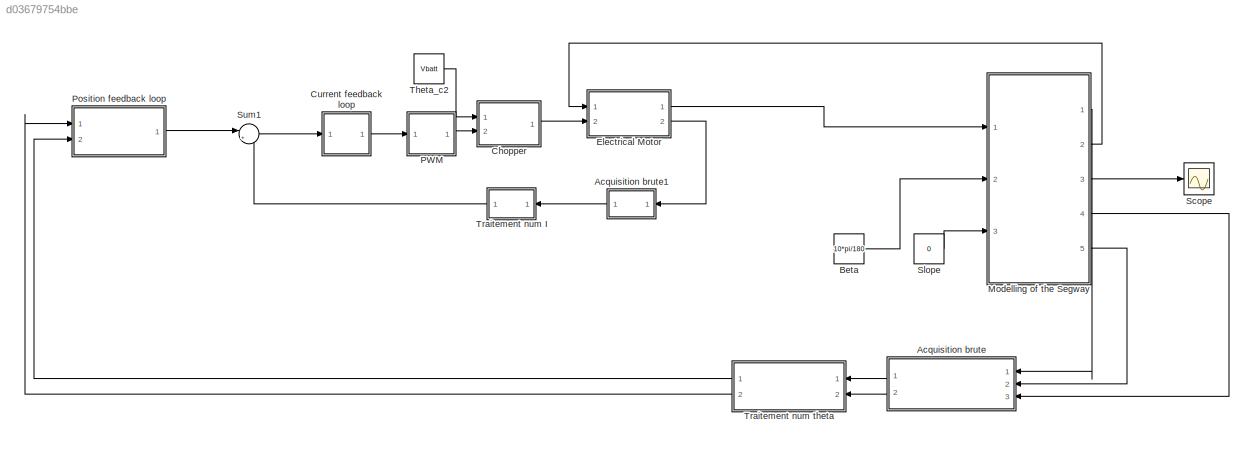
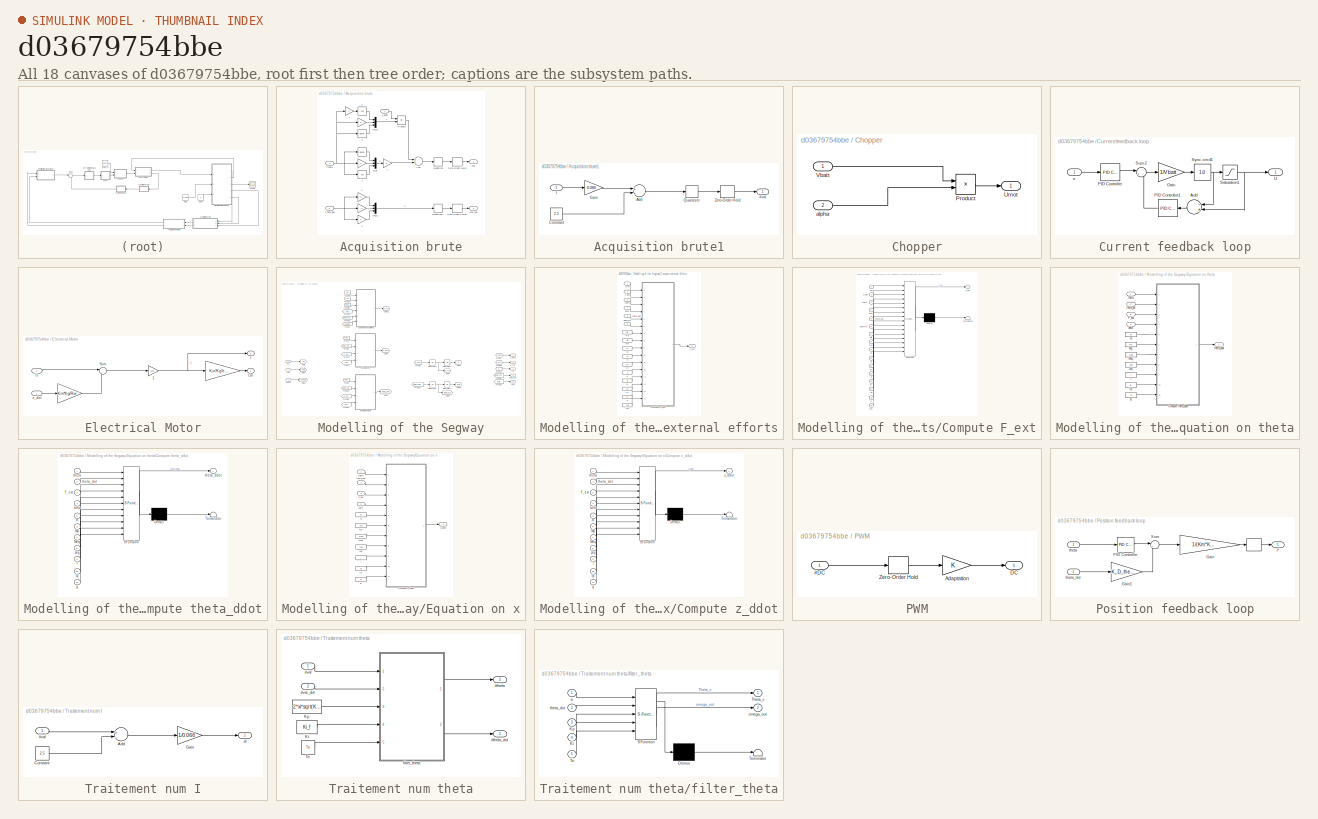
[diagram: thumbnail index - all 18 canvases of the model, root first then tree order]
MODEL slx_d03679754bbe
KIND model
CONFIG AbsTol = auto
CONFIG EnableMultiTasking = on
CONFIG FixedStep = 0.005
CONFIG MaxStep = auto
CONFIG MinStep = auto
CONFIG RelTol = 1e-3
CONFIG SampleTimeConstraint = Unconstrained
CONFIG Solver = ode4
CONFIG SolverName = ode4
CONFIG StartTime = 0.0
CONFIG StopTime = 20
BLOCK [SubSystem] Acquisition brute
  Ports = [3, 2]
  RequestExecContextInheritance = off
  Variant = off
BLOCK [Trigonometry] Acquisition brute/   
  Ports = [1, 1]
BLOCK [Gain] Acquisition brute/    
  Gain = 0
  OutDataTypeStr = Inherit: Inherit via internal rule
  ParamDataTypeStr = Inherit: Inherit via internal rule
  SaturateOnIntegerOverflow = off
BLOCK [Gain] Acquisition brute/    1
  Gain = g
  OutDataTypeStr = Inherit: Inherit via internal rule
  ParamDataTypeStr = Inherit: Inherit via internal rule
  SaturateOnIntegerOverflow = off
BLOCK [Gain] Acquisition brute/    2
  Gain = -1
  OutDataTypeStr = Inherit: Inherit via internal rule
  ParamDataTypeStr = Inherit: Inherit via internal rule
  SaturateOnIntegerOverflow = off
BLOCK [Gain] Acquisition brute/    3
  Gain = 0
  OutDataTypeStr = Inherit: Inherit via internal rule
  ParamDataTypeStr = Inherit: Inherit via internal rule
  SaturateOnIntegerOverflow = off
BLOCK [Gain] Acquisition brute/    4
  Gain = 0
  OutDataTypeStr = Inherit: Inherit via internal rule
  ParamDataTypeStr = Inherit: Inherit via internal rule
  SaturateOnIntegerOverflow = off
BLOCK [Gain] Acquisition brute/    5
  Gain = 0
  OutDataTypeStr = Inherit: Inherit via internal rule
  ParamDataTypeStr = Inherit: Inherit via internal rule
  SaturateOnIntegerOverflow = off
BLOCK [Gain] Acquisition brute/    7
  Gain = -1
  OutDataTypeStr = Inherit: Inherit via internal rule
  ParamDataTypeStr = Inherit: Inherit via internal rule
  SaturateOnIntegerOverflow = off
BLOCK [Trigonometry] Acquisition brute/   1
  Operator = cos
  Ports = [1, 1]
BLOCK [Trigonometry] Acquisition brute/   2
  Operator = cos
  Ports = [1, 1]
BLOCK [Trigonometry] Acquisition brute/   3
  Ports = [1, 1]
BLOCK [Outport] Acquisition brute/#val
  IconDisplay = Port number
BLOCK [Outport] Acquisition brute/#val_dot
  IconDisplay = Port number
  Port = 2
BLOCK [Sum] Acquisition brute/Add
  InputSameDT = off
  OutDataTypeStr = Inherit: Inherit via internal rule
  Ports = [2, 1]
  SaturateOnIntegerOverflow = off
BLOCK [Mux] Acquisition brute/Mux
  DisplayOption = bar
  Inputs = 3
  Ports = [3, 1]
BLOCK [Mux] Acquisition brute/Mux1
  DisplayOption = bar
  Inputs = 3
  Ports = [3, 1]
BLOCK [Mux] Acquisition brute/Mux2
  DisplayOption = bar
  Inputs = 3
  Ports = [3, 1]
BLOCK [Product] Acquisition brute/Product
  InputSameDT = off
  OutDataTypeStr = Inherit: Inherit via internal rule
  Ports = [2, 1]
  RndMeth = Floor
  SaturateOnIntegerOverflow = off
BLOCK [Quantizer] Acquisition brute/Quantizer
  QuantizationInterval = 0.0039
BLOCK [Quantizer] Acquisition brute/Quantizer1
  QuantizationInterval = 0.00122
BLOCK [Inport] Acquisition brute/Theta
  IconDisplay = Port number
  Port = 2
BLOCK [Inport] Acquisition brute/Theta_dot
  IconDisplay = Port number
  Port = 3
BLOCK [ZeroOrderHold] Acquisition brute/Zero-Order Hold
  SampleTime = Te
BLOCK [ZeroOrderHold] Acquisition brute/Zero-Order Hold1
  SampleTime = Te
BLOCK [Inport] Acquisition brute/z_ddot
  IconDisplay = Port number
BLOCK [SubSystem] Acquisition brute1
  Ports = [1, 1]
  RequestExecContextInheritance = off
  Variant = off
BLOCK [Outport] Acquisition brute1/#val
  IconDisplay = Port number
BLOCK [Sum] Acquisition brute1/Add
  InputSameDT = off
  OutDataTypeStr = Inherit: Inherit via internal rule
  Ports = [2, 1]
  SaturateOnIntegerOverflow = off
BLOCK [Constant] Acquisition brute1/Constant
  Value = 2.5
BLOCK [Gain] Acquisition brute1/Gain
  Gain = 0.066
  OutDataTypeStr = Inherit: Inherit via internal rule
  ParamDataTypeStr = Inherit: Inherit via internal rule
  SaturateOnIntegerOverflow = off
BLOCK [Inport] Acquisition brute1/I
  IconDisplay = Port number
BLOCK [Quantizer] Acquisition brute1/Quantizer
  QuantizationInterval = 5/(2^10-1)
BLOCK [ZeroOrderHold] Acquisition brute1/Zero-Order Hold
  SampleTime = Ti
BLOCK [Constant] Beta
  Value = 10*pi/180
BLOCK [SubSystem] Chopper
  Ports = [2, 1]
  RequestExecContextInheritance = off
  Variant = off
BLOCK [Product] Chopper/Product
  InputSameDT = off
  OutDataTypeStr = Inherit: Inherit via internal rule
  Ports = [2, 1]
  SaturateOnIntegerOverflow = off
BLOCK [Outport] Chopper/Umot
  IconDisplay = Port number
BLOCK [Inport] Chopper/Vbatt
  IconDisplay = Port number
BLOCK [Inport] Chopper/alpha
  IconDisplay = Port number
  Port = 2
BLOCK [SubSystem] Current feedback loop
  Ports = [1, 1]
  RequestExecContextInheritance = off
  Variant = off
BLOCK [Sum] Current feedback loop/Add
  InputSameDT = off
  Inputs = -+
  OutDataTypeStr = Inherit: Inherit via internal rule
  Ports = [2, 1]
  SaturateOnIntegerOverflow = off
BLOCK [Gain] Current feedback loop/Gain
  Gain = 1/Vbatt
  OutDataTypeStr = Inherit: Inherit via internal rule
  ParamDataTypeStr = Inherit: Inherit via internal rule
  SaturateOnIntegerOverflow = off
BLOCK [Reference] Current feedback loop/PID Controller  REF=simulink/Continuous/PID Controller
  Ports = [1, 1]
  SourceBlock = simulink/Continuous/PID Controller
  SourceType = PID 1dof
BLOCK [Reference] Current feedback loop/PID Controller1  REF=simulink/Continuous/PID Controller
  Ports = [1, 1]
  SourceBlock = simulink/Continuous/PID Controller
  SourceType = PID 1dof
BLOCK [Saturate] Current feedback loop/Saturation1
  InputPortMap = u0
  LowerLimit = -1
  Ports = [1, 1]
  UpperLimit = 1
BLOCK [Sum] Current feedback loop/Sum2
  IconShape = round
  InputSameDT = off
  Inputs = |++
  OutDataTypeStr = Inherit: Inherit via internal rule
  Ports = [2, 1]
  SaturateOnIntegerOverflow = off
BLOCK [UnitDelay] Current feedback loop/Sync. cmd1
  InputProcessing = Elements as channels (sample based)
  SampleTime = -1
BLOCK [Outport] Current feedback loop/U
  IconDisplay = Port number
BLOCK [Inport] Current feedback loop/e
  IconDisplay = Port number
BLOCK [SubSystem] Electrical Motor
  Ports = [2, 2]
  RequestExecContextInheritance = off
  Variant = off
BLOCK [Gain] Electrical Motor/  
  Gain = Km*Kg*eta_pwc
  OutDataTypeStr = Inherit: Inherit via internal rule
  ParamDataTypeStr = Inherit: Inherit via internal rule
  SaturateOnIntegerOverflow = off
BLOCK [Gain] Electrical Motor/   
  Gain = Km*Kg/Rw
  OutDataTypeStr = Inherit: Inherit via internal rule
  ParamDataTypeStr = Inherit: Inherit via internal rule
  SaturateOnIntegerOverflow = off
BLOCK [Gain] Electrical Motor/ 1
  Gain = 1/R
  OutDataTypeStr = Inherit: Inherit via internal rule
  ParamDataTypeStr = Inherit: Inherit via internal rule
  SaturateOnIntegerOverflow = off
BLOCK [Outport] Electrical Motor/Cm
  IconDisplay = Port number
BLOCK [Outport] Electrical Motor/I
  IconDisplay = Port number
  Port = 2
BLOCK [Sum] Electrical Motor/Sum
  IconShape = round
  InputSameDT = off
  Inputs = |+-
  OutDataTypeStr = Inherit: Inherit via internal rule
  Ports = [2, 1]
  SaturateOnIntegerOverflow = off
BLOCK [Inport] Electrical Motor/U
  IconDisplay = Port number
  Port = 2
BLOCK [Inport] Electrical Motor/z_dot
  IconDisplay = Port number
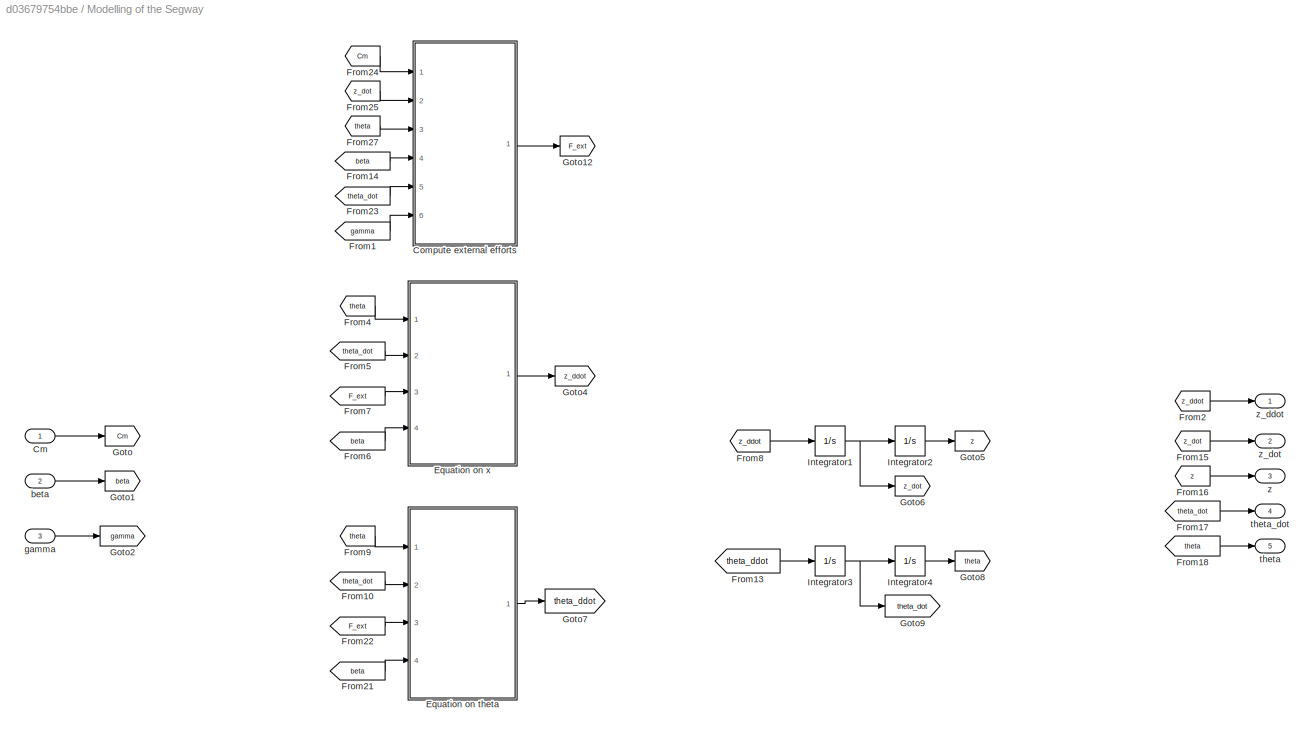
BLOCK [SubSystem] Modelling of the Segway
  Ports = [3, 5]
  RequestExecContextInheritance = off
  Variant = off
BLOCK [Inport] Modelling of the Segway/Cm
  IconDisplay = Port number
BLOCK [SubSystem] Modelling of the Segway/Compute external efforts
  Ports = [6, 1]
  RequestExecContextInheritance = off
  Variant = off
BLOCK [Inport] Modelling of the Segway/Compute external efforts/Cm
  IconDisplay = Port number
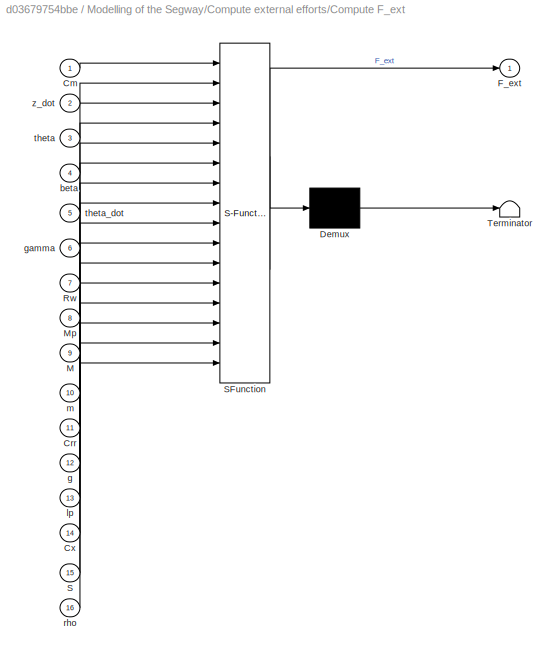
BLOCK [SubSystem] Modelling of the Segway/Compute external efforts/Compute F_ext
  ErrorFcn = Stateflow.Translate.translate
  PermitHierarchicalResolution = ExplicitOnly
  Ports = [16, 1]
  RequestExecContextInheritance = off
  SFBlockType = MATLAB Function
  TreatAsAtomicUnit = on
  Variant = off
BLOCK [Demux] Modelling of the Segway/Compute external efforts/Compute F_ext/ Demux 
  Outputs = 1
  Ports = [1, 1]
BLOCK [S-Function] Modelling of the Segway/Compute external efforts/Compute F_ext/ SFunction 
  EnableBusSupport = on
  FunctionName = sf_sfun
  PortCounts = [16 2]
  Ports = [16, 2]
  SFcnIsStateOwnerBlock = off
  SFunctionDeploymentMode = off
  Tag = Stateflow S-Function Segway_final_1 5
BLOCK [Terminator] Modelling of the Segway/Compute external efforts/Compute F_ext/ Terminator 
BLOCK [Inport] Modelling of the Segway/Compute external efforts/Compute F_ext/Cm
  IconDisplay = Port number
BLOCK [Inport] Modelling of the Segway/Compute external efforts/Compute F_ext/Crr
  IconDisplay = Port number
  Port = 11
BLOCK [Inport] Modelling of the Segway/Compute external efforts/Compute F_ext/Cx
  IconDisplay = Port number
  Port = 14
BLOCK [Outport] Modelling of the Segway/Compute external efforts/Compute F_ext/F_ext
  IconDisplay = Port number
BLOCK [Inport] Modelling of the Segway/Compute external efforts/Compute F_ext/M
  IconDisplay = Port number
  Port = 9
BLOCK [Inport] Modelling of the Segway/Compute external efforts/Compute F_ext/Mp
  IconDisplay = Port number
  Port = 8
BLOCK [Inport] Modelling of the Segway/Compute external efforts/Compute F_ext/Rw
  IconDisplay = Port number
  Port = 7
BLOCK [Inport] Modelling of the Segway/Compute external efforts/Compute F_ext/S
  IconDisplay = Port number
  Port = 15
BLOCK [Inport] Modelling of the Segway/Compute external efforts/Compute F_ext/beta
  IconDisplay = Port number
  Port = 4
BLOCK [Inport] Modelling of the Segway/Compute external efforts/Compute F_ext/g
  IconDisplay = Port number
  Port = 12
BLOCK [Inport] Modelling of the Segway/Compute external efforts/Compute F_ext/gamma
  IconDisplay = Port number
  Port = 6
BLOCK [Inport] Modelling of the Segway/Compute external efforts/Compute F_ext/lp
  IconDisplay = Port number
  Port = 13
BLOCK [Inport] Modelling of the Segway/Compute external efforts/Compute F_ext/m
  IconDisplay = Port number
  Port = 10
BLOCK [Inport] Modelling of the Segway/Compute external efforts/Compute F_ext/rho
  IconDisplay = Port number
  Port = 16
BLOCK [Inport] Modelling of the Segway/Compute external efforts/Compute F_ext/theta
  IconDisplay = Port number
  Port = 3
BLOCK [Inport] Modelling of the Segway/Compute external efforts/Compute F_ext/theta_dot
  IconDisplay = Port number
  Port = 5
BLOCK [Inport] Modelling of the Segway/Compute external efforts/Compute F_ext/z_dot
  IconDisplay = Port number
  Port = 2
BLOCK [Constant] Modelling of the Segway/Compute external efforts/Crr
  Value = Crr
BLOCK [Constant] Modelling of the Segway/Compute external efforts/Cx
  Value = Cx
BLOCK [Outport] Modelling of the Segway/Compute external efforts/F_ext
  IconDisplay = Port number
BLOCK [Constant] Modelling of the Segway/Compute external efforts/M
  Value = M
BLOCK [Constant] Modelling of the Segway/Compute external efforts/Mp
  Value = Mp
BLOCK [Constant] Modelling of the Segway/Compute external efforts/Rw
  Value = Rw
BLOCK [Constant] Modelling of the Segway/Compute external efforts/S
  Value = S
BLOCK [Inport] Modelling of the Segway/Compute external efforts/beta
  IconDisplay = Port number
  Port = 4
BLOCK [Constant] Modelling of the Segway/Compute external efforts/g
  Value = g
BLOCK [Inport] Modelling of the Segway/Compute external efforts/gamma
  IconDisplay = Port number
  Port = 6
BLOCK [Constant] Modelling of the Segway/Compute external efforts/lp
  Value = lp
BLOCK [Constant] Modelling of the Segway/Compute external efforts/m
  Value = m
BLOCK [Constant] Modelling of the Segway/Compute external efforts/rho
  Value = rho
BLOCK [Inport] Modelling of the Segway/Compute external efforts/theta
  IconDisplay = Port number
  Port = 3
BLOCK [Inport] Modelling of the Segway/Compute external efforts/theta_dot
  IconDisplay = Port number
  Port = 5
BLOCK [Inport] Modelling of the Segway/Compute external efforts/z_dot
  IconDisplay = Port number
  Port = 2
BLOCK [SubSystem] Modelling of the Segway/Equation on theta
  Ports = [4, 1]
  RequestExecContextInheritance = off
  Variant = off
BLOCK [SubSystem] Modelling of the Segway/Equation on theta/Compute theta_ddot
  ErrorFcn = Stateflow.Translate.translate
  PermitHierarchicalResolution = ExplicitOnly
  Ports = [11, 1]
  RequestExecContextInheritance = off
  SFBlockType = MATLAB Function
  TreatAsAtomicUnit = on
  Variant = off
BLOCK [Demux] Modelling of the Segway/Equation on theta/Compute theta_ddot/ Demux 
  Outputs = 1
  Ports = [1, 1]
BLOCK [S-Function] Modelling of the Segway/Equation on theta/Compute theta_ddot/ SFunction 
  EnableBusSupport = on
  FunctionName = sf_sfun
  PortCounts = [11 2]
  Ports = [11, 2]
  SFcnIsStateOwnerBlock = off
  SFunctionDeploymentMode = off
  Tag = Stateflow S-Function Segway_final_1 3
BLOCK [Terminator] Modelling of the Segway/Equation on theta/Compute theta_ddot/ Terminator 
BLOCK [Inport] Modelling of the Segway/Equation on theta/Compute theta_ddot/F_ext
  IconDisplay = Port number
  Port = 3
BLOCK [Inport] Modelling of the Segway/Equation on theta/Compute theta_ddot/Jeq
  IconDisplay = Port number
  Port = 8
BLOCK [Inport] Modelling of the Segway/Equation on theta/Compute theta_ddot/Meq
  IconDisplay = Port number
  Port = 7
BLOCK [Inport] Modelling of the Segway/Equation on theta/Compute theta_ddot/Mp
  IconDisplay = Port number
  Port = 6
BLOCK [Inport] Modelling of the Segway/Equation on theta/Compute theta_ddot/beta
  IconDisplay = Port number
  Port = 4
BLOCK [Inport] Modelling of the Segway/Equation on theta/Compute theta_ddot/g
  IconDisplay = Port number
  Port = 11
BLOCK [Inport] Modelling of the Segway/Equation on theta/Compute theta_ddot/l
  IconDisplay = Port number
  Port = 9
BLOCK [Inport] Modelling of the Segway/Equation on theta/Compute theta_ddot/lp
  IconDisplay = Port number
  Port = 10
BLOCK [Inport] Modelling of the Segway/Equation on theta/Compute theta_ddot/m
  IconDisplay = Port number
  Port = 5
BLOCK [Inport] Modelling of the Segway/Equation on theta/Compute theta_ddot/theta
  IconDisplay = Port number
BLOCK [Outport] Modelling of the Segway/Equation on theta/Compute theta_ddot/theta_ddot
  IconDisplay = Port number
BLOCK [Inport] Modelling of the Segway/Equation on theta/Compute theta_ddot/theta_dot
  IconDisplay = Port number
  Port = 2
BLOCK [Inport] Modelling of the Segway/Equation on theta/F_ext
  IconDisplay = Port number
  Port = 3
BLOCK [Constant] Modelling of the Segway/Equation on theta/Jeq
  Value = Jeq
BLOCK [Constant] Modelling of the Segway/Equation on theta/Meq
  Value = Meq
BLOCK [Constant] Modelling of the Segway/Equation on theta/Mp
  Value = Mp
BLOCK [Inport] Modelling of the Segway/Equation on theta/beta
  IconDisplay = Port number
  Port = 4
BLOCK [Constant] Modelling of the Segway/Equation on theta/g
  Value = g
BLOCK [Constant] Modelling of the Segway/Equation on theta/l
  Value = l
BLOCK [Constant] Modelling of the Segway/Equation on theta/lp
  Value = lp
BLOCK [Constant] Modelling of the Segway/Equation on theta/m
  Value = m
BLOCK [Inport] Modelling of the Segway/Equation on theta/theta
  IconDisplay = Port number
BLOCK [Outport] Modelling of the Segway/Equation on theta/theta_ddot
  IconDisplay = Port number
BLOCK [Inport] Modelling of the Segway/Equation on theta/theta_dot
  IconDisplay = Port number
  Port = 2
BLOCK [SubSystem] Modelling of the Segway/Equation on x
  Ports = [4, 1]
  RequestExecContextInheritance = off
  Variant = off
BLOCK [SubSystem] Modelling of the Segway/Equation on x/Compute z_ddot
  ErrorFcn = Stateflow.Translate.translate
  PermitHierarchicalResolution = ExplicitOnly
  Ports = [11, 1]
  RequestExecContextInheritance = off
  SFBlockType = MATLAB Function
  TreatAsAtomicUnit = on
  Variant = off
BLOCK [Demux] Modelling of the Segway/Equation on x/Compute z_ddot/ Demux 
  Outputs = 1
  Ports = [1, 1]
BLOCK [S-Function] Modelling of the Segway/Equation on x/Compute z_ddot/ SFunction 
  EnableBusSupport = on
  FunctionName = sf_sfun
  PortCounts = [11 2]
  Ports = [11, 2]
  SFcnIsStateOwnerBlock = off
  SFunctionDeploymentMode = off
  Tag = Stateflow S-Function Segway_final_1 1
BLOCK [Terminator] Modelling of the Segway/Equation on x/Compute z_ddot/ Terminator 
BLOCK [Inport] Modelling of the Segway/Equation on x/Compute z_ddot/F_ext
  IconDisplay = Port number
  Port = 3
BLOCK [Inport] Modelling of the Segway/Equation on x/Compute z_ddot/Jeq
  IconDisplay = Port number
  Port = 8
BLOCK [Inport] Modelling of the Segway/Equation on x/Compute z_ddot/Meq
  IconDisplay = Port number
  Port = 7
BLOCK [Inport] Modelling of the Segway/Equation on x/Compute z_ddot/Mp
  IconDisplay = Port number
  Port = 6
BLOCK [Inport] Modelling of the Segway/Equation on x/Compute z_ddot/beta
  IconDisplay = Port number
  Port = 4
BLOCK [Inport] Modelling of the Segway/Equation on x/Compute z_ddot/g
  IconDisplay = Port number
  Port = 11
BLOCK [Inport] Modelling of the Segway/Equation on x/Compute z_ddot/l
  IconDisplay = Port number
  Port = 9
BLOCK [Inport] Modelling of the Segway/Equation on x/Compute z_ddot/lp
  IconDisplay = Port number
  Port = 10
BLOCK [Inport] Modelling of the Segway/Equation on x/Compute z_ddot/m
  IconDisplay = Port number
  Port = 5
BLOCK [Inport] Modelling of the Segway/Equation on x/Compute z_ddot/theta
  IconDisplay = Port number
BLOCK [Inport] Modelling of the Segway/Equation on x/Compute z_ddot/theta_dot
  IconDisplay = Port number
  Port = 2
BLOCK [Outport] Modelling of the Segway/Equation on x/Compute z_ddot/z_ddot
  IconDisplay = Port number
BLOCK [Inport] Modelling of the Segway/Equation on x/F_ext
  IconDisplay = Port number
  Port = 3
BLOCK [Constant] Modelling of the Segway/Equation on x/Jeq
  Value = Jeq
BLOCK [Constant] Modelling of the Segway/Equation on x/Meq
  Value = Meq
BLOCK [Constant] Modelling of the Segway/Equation on x/Mp
  Value = Mp
BLOCK [Inport] Modelling of the Segway/Equation on x/beta
  IconDisplay = Port number
  Port = 4
BLOCK [Constant] Modelling of the Segway/Equation on x/g
  Value = g
BLOCK [Constant] Modelling of the Segway/Equation on x/l
  Value = l
BLOCK [Constant] Modelling of the Segway/Equation on x/lp
  Value = lp
BLOCK [Constant] Modelling of the Segway/Equation on x/m
  Value = m
BLOCK [Inport] Modelling of the Segway/Equation on x/theta
  IconDisplay = Port number
BLOCK [Inport] Modelling of the Segway/Equation on x/theta_dot
  IconDisplay = Port number
  Port = 2
BLOCK [Outport] Modelling of the Segway/Equation on x/z_ddot
  IconDisplay = Port number
BLOCK [From] Modelling of the Segway/From1
  GotoTag = gamma
  TagVisibility = global
BLOCK [From] Modelling of the Segway/From10
  GotoTag = theta_dot
  TagVisibility = global
BLOCK [From] Modelling of the Segway/From13
  GotoTag = theta_ddot
  TagVisibility = global
BLOCK [From] Modelling of the Segway/From14
  GotoTag = beta
  TagVisibility = global
BLOCK [From] Modelling of the Segway/From15
  GotoTag = z_dot
  TagVisibility = global
BLOCK [From] Modelling of the Segway/From16
  GotoTag = z
  TagVisibility = global
BLOCK [From] Modelling of the Segway/From17
  GotoTag = theta_dot
  TagVisibility = global
BLOCK [From] Modelling of the Segway/From18
  GotoTag = theta
  TagVisibility = global
BLOCK [From] Modelling of the Segway/From2
  GotoTag = z_ddot
  TagVisibility = global
BLOCK [From] Modelling of the Segway/From21
  GotoTag = beta
  TagVisibility = global
BLOCK [From] Modelling of the Segway/From22
  GotoTag = F_ext
  TagVisibility = global
BLOCK [From] Modelling of the Segway/From23
  GotoTag = theta_dot
  TagVisibility = global
BLOCK [From] Modelling of the Segway/From24
  GotoTag = Cm
  TagVisibility = global
BLOCK [From] Modelling of the Segway/From25
  GotoTag = z_dot
  TagVisibility = global
BLOCK [From] Modelling of the Segway/From27
  GotoTag = theta
  TagVisibility = global
BLOCK [From] Modelling of the Segway/From4
  GotoTag = theta
  TagVisibility = global
BLOCK [From] Modelling of the Segway/From5
  GotoTag = theta_dot
  TagVisibility = global
BLOCK [From] Modelling of the Segway/From6
  GotoTag = beta
  TagVisibility = global
BLOCK [From] Modelling of the Segway/From7
  GotoTag = F_ext
  TagVisibility = global
BLOCK [From] Modelling of the Segway/From8
  GotoTag = z_ddot
  TagVisibility = global
BLOCK [From] Modelling of the Segway/From9
  GotoTag = theta
  TagVisibility = global
BLOCK [Goto] Modelling of the Segway/Goto
  GotoTag = Cm
  TagVisibility = global
BLOCK [Goto] Modelling of the Segway/Goto1
  GotoTag = beta
  TagVisibility = global
BLOCK [Goto] Modelling of the Segway/Goto12
  GotoTag = F_ext
  TagVisibility = global
BLOCK [Goto] Modelling of the Segway/Goto2
  GotoTag = gamma
  TagVisibility = global
BLOCK [Goto] Modelling of the Segway/Goto4
  GotoTag = z_ddot
  TagVisibility = global
BLOCK [Goto] Modelling of the Segway/Goto5
  GotoTag = z
  TagVisibility = global
BLOCK [Goto] Modelling of the Segway/Goto6
  GotoTag = z_dot
  TagVisibility = global
BLOCK [Goto] Modelling of the Segway/Goto7
  GotoTag = theta_ddot
  TagVisibility = global
BLOCK [Goto] Modelling of the Segway/Goto8
  GotoTag = theta
  TagVisibility = global
BLOCK [Goto] Modelling of the Segway/Goto9
  GotoTag = theta_dot
  TagVisibility = global
BLOCK [Integrator] Modelling of the Segway/Integrator1
  InitialCondition = z_dot_0
  Ports = [1, 1]
BLOCK [Integrator] Modelling of the Segway/Integrator2
  InitialCondition = z_0
  Ports = [1, 1]
BLOCK [Integrator] Modelling of the Segway/Integrator3
  InitialCondition = theta_dot_0
  Ports = [1, 1]
BLOCK [Integrator] Modelling of the Segway/Integrator4
  InitialCondition = theta_0
  Ports = [1, 1]
BLOCK [Inport] Modelling of the Segway/beta
  IconDisplay = Port number
  Port = 2
BLOCK [Inport] Modelling of the Segway/gamma
  IconDisplay = Port number
  Port = 3
BLOCK [Outport] Modelling of the Segway/theta
  IconDisplay = Port number
  Port = 5
BLOCK [Outport] Modelling of the Segway/theta_dot
  IconDisplay = Port number
  Port = 4
BLOCK [Outport] Modelling of the Segway/z
  IconDisplay = Port number
  Port = 3
BLOCK [Outport] Modelling of the Segway/z_ddot
  IconDisplay = Port number
BLOCK [Outport] Modelling of the Segway/z_dot
  IconDisplay = Port number
  Port = 2
BLOCK [SubSystem] PWM
  Ports = [1, 1]
  RequestExecContextInheritance = off
  Variant = off
BLOCK [Inport] PWM/#DC
  IconDisplay = Port number
BLOCK [Gain] PWM/Adaptation
  OutDataTypeStr = Inherit: Inherit via internal rule
  ParamDataTypeStr = Inherit: Inherit via internal rule
  SampleTime = 0
  SaturateOnIntegerOverflow = off
BLOCK [Outport] PWM/DC
  IconDisplay = Port number
BLOCK [ZeroOrderHold] PWM/Zero-Order Hold
  SampleTime = Ti
BLOCK [SubSystem] Position feedback loop
  Ports = [2, 1]
  RequestExecContextInheritance = off
  Variant = off
BLOCK [ZeroOrderHold] Position feedback loop/  
  SampleTime = Te
BLOCK [Gain] Position feedback loop/Gain
  Gain = 1/(Km*Kg*eta_pwc)
  OutDataTypeStr = Inherit: Inherit via internal rule
  ParamDataTypeStr = Inherit: Inherit via internal rule
  SaturateOnIntegerOverflow = off
BLOCK [Gain] Position feedback loop/Gain1
  Gain = K_D_theta
  OutDataTypeStr = Inherit: Inherit via internal rule
  ParamDataTypeStr = Inherit: Inherit via internal rule
  SaturateOnIntegerOverflow = off
BLOCK [Outport] Position feedback loop/I*
  IconDisplay = Port number
BLOCK [Reference] Position feedback loop/PID Controller  REF=simulink/Continuous/PID Controller
  Ports = [1, 1]
  SourceBlock = simulink/Continuous/PID Controller
  SourceType = PID 1dof
BLOCK [Sum] Position feedback loop/Sum
  IconShape = round
  InputSameDT = off
  Inputs = |++
  OutDataTypeStr = Inherit: Inherit via internal rule
  Ports = [2, 1]
  SaturateOnIntegerOverflow = off
BLOCK [Inport] Position feedback loop/theta
  IconDisplay = Port number
BLOCK [Inport] Position feedback loop/theta_dot
  IconDisplay = Port number
  Port = 2
BLOCK [Scope] Scope
  NumInputPorts = 1
  Ports = [1]
  ScopeSpecificationString = Simulink.scopes.TimeScopeBlockCfg('CurrentConfiguration', extmgr.ConfigurationSet(extmgr.Configuration('Core','General UI',true),extmgr.Configuration('Core','Source UI',true),extmgr.Configuration('Sources','WiredSimulink',true,'SampleTime','0.5'),extmgr.Configuration('Visuals','Time Domain',true,'SerializedDisplays',{struct('MinYLimReal','-11.37137','MaxYLimReal','102.34237','YLabelReal','','MinYL...<+1399ch>
BLOCK [Constant] Slope
  Value = 0
BLOCK [Sum] Sum1
  IconShape = round
  InputSameDT = off
  Inputs = |+-
  OutDataTypeStr = Inherit: Inherit via internal rule
  Ports = [2, 1]
  SampleTime = Ti
  SaturateOnIntegerOverflow = off
BLOCK [Constant] Theta_c2
  SampleTime = 0
  Value = Vbatt
BLOCK [SubSystem] Traitement num I
  Ports = [1, 1]
  RequestExecContextInheritance = off
  Variant = off
BLOCK [Outport] Traitement num I/#I
  IconDisplay = Port number
BLOCK [Inport] Traitement num I/#val
  IconDisplay = Port number
BLOCK [Sum] Traitement num I/Add
  InputSameDT = off
  Inputs = +-
  OutDataTypeStr = Inherit: Inherit via internal rule
  Ports = [2, 1]
  SaturateOnIntegerOverflow = off
BLOCK [Constant] Traitement num I/Constant
  SampleTime = Ti
  Value = 2.5
BLOCK [Gain] Traitement num I/Gain
  Gain = 1/0.066
  OutDataTypeStr = Inherit: Inherit via internal rule
  ParamDataTypeStr = Inherit: Inherit via internal rule
  SaturateOnIntegerOverflow = off
BLOCK [SubSystem] Traitement num theta
  Ports = [2, 2]
  RequestExecContextInheritance = off
  Variant = off
BLOCK [Outport] Traitement num theta/#theta
  IconDisplay = Port number
  Port = 2
BLOCK [Outport] Traitement num theta/#theta_dot
  IconDisplay = Port number
BLOCK [Inport] Traitement num theta/#val
  IconDisplay = Port number
BLOCK [Inport] Traitement num theta/#val_dot
  IconDisplay = Port number
  Port = 2
BLOCK [Constant] Traitement num theta/Ki
  Value = Ki_f
BLOCK [Constant] Traitement num theta/Kp
  Value = 2*xi*sqrt(Ki_f)
BLOCK [Constant] Traitement num theta/Te
  Value = Te
BLOCK [SubSystem] Traitement num theta/filter_theta
  ErrorFcn = Stateflow.Translate.translate
  PermitHierarchicalResolution = ExplicitOnly
  Ports = [5, 2]
  RequestExecContextInheritance = off
  SFBlockType = MATLAB Function
  SystemSampleTime = Te
  TreatAsAtomicUnit = on
  Variant = off
BLOCK [Demux] Traitement num theta/filter_theta/ Demux 
  Outputs = 1
  Ports = [1, 1]
BLOCK [S-Function] Traitement num theta/filter_theta/ SFunction 
  EnableBusSupport = on
  FunctionName = sf_sfun
  PortCounts = [5 3]
  Ports = [5, 3]
  SFcnIsStateOwnerBlock = off
  SFunctionDeploymentMode = off
  Tag = Stateflow S-Function Segway_final_1 6
BLOCK [Terminator] Traitement num theta/filter_theta/ Terminator 
BLOCK [Inport] Traitement num theta/filter_theta/Ki
  IconDisplay = Port number
  Port = 4
BLOCK [Inport] Traitement num theta/filter_theta/Kp
  IconDisplay = Port number
  Port = 3
BLOCK [Inport] Traitement num theta/filter_theta/Te
  IconDisplay = Port number
  Port = 5
BLOCK [Outport] Traitement num theta/filter_theta/Theta_c
  IconDisplay = Port number
BLOCK [Inport] Traitement num theta/filter_theta/a
  IconDisplay = Port number
BLOCK [Outport] Traitement num theta/filter_theta/omega_out
  IconDisplay = Port number
  Port = 2
BLOCK [Inport] Traitement num theta/filter_theta/theta_dot
  IconDisplay = Port number
  Port = 2
ANNOTATION Electrical Motor: I
LINE Acquisition brute/    1:1 -> Acquisition brute/Add:2
LINE Acquisition brute/    2:1 -> Acquisition brute/Mux1:2
LINE Acquisition brute/    3:1 -> Acquisition brute/Mux1:3
LINE Acquisition brute/    4:1 -> Acquisition brute/Mux1:1
LINE Acquisition brute/    5:1 -> Acquisition brute/Mux2:2
LINE Acquisition brute/    7:1 -> Acquisition brute/   2:1
LINE Acquisition brute/    :1 -> Acquisition brute/Mux:2
LINE Acquisition brute/   1:1 -> Acquisition brute/Mux:3
LINE Acquisition brute/   2:1 -> Acquisition brute/Mux2:1
LINE Acquisition brute/   3:1 -> Acquisition brute/Mux2:3
LINE Acquisition brute/   :1 -> Acquisition brute/Mux:1
LINE Acquisition brute/Add:1 -> Acquisition brute/Quantizer:1
LINE Acquisition brute/Mux1:1 -> Acquisition brute/Quantizer1:1
LINE Acquisition brute/Mux2:1 -> Acquisition brute/Product:2
LINE Acquisition brute/Mux:1 -> Acquisition brute/    1:1
LINE Acquisition brute/Product:1 -> Acquisition brute/Add:1
LINE Acquisition brute/Quantizer1:1 -> Acquisition brute/Zero-Order Hold1:1
LINE Acquisition brute/Quantizer:1 -> Acquisition brute/Zero-Order Hold:1
NET Acquisition brute/Theta:1 -> Acquisition brute/    5:1, Acquisition brute/    7:1, Acquisition brute/    :1, Acquisition brute/   1:1, Acquisition brute/   3:1, Acquisition brute/   :1
NET Acquisition brute/Theta_dot:1 -> Acquisition brute/    2:1, Acquisition brute/    3:1, Acquisition brute/    4:1
LINE Acquisition brute/Zero-Order Hold1:1 -> Acquisition brute/#val_dot:1
LINE Acquisition brute/Zero-Order Hold:1 -> Acquisition brute/#val:1
LINE Acquisition brute/z_ddot:1 -> Acquisition brute/Product:1
LINE Acquisition brute1/Add:1 -> Acquisition brute1/Quantizer:1
LINE Acquisition brute1/Constant:1 -> Acquisition brute1/Add:2
LINE Acquisition brute1/Gain:1 -> Acquisition brute1/Add:1
LINE Acquisition brute1/I:1 -> Acquisition brute1/Gain:1
LINE Acquisition brute1/Quantizer:1 -> Acquisition brute1/Zero-Order Hold:1
LINE Acquisition brute1/Zero-Order Hold:1 -> Acquisition brute1/#val:1
LINE Acquisition brute1:1 -> Traitement num I:1
LINE Acquisition brute:1 -> Traitement num theta:1
LINE Acquisition brute:2 -> Traitement num theta:2
LINE Beta:1 -> Modelling of the Segway:2
LINE Chopper/Product:1 -> Chopper/Umot:1
LINE Chopper/Vbatt:1 -> Chopper/Product:1
LINE Chopper/alpha:1 -> Chopper/Product:2
LINE Chopper:1 -> Electrical Motor:2
LINE Current feedback loop/Add:1 -> Current feedback loop/PID Controller1:1
LINE Current feedback loop/Gain:1 -> Current feedback loop/Sync. cmd1:1
LINE Current feedback loop/PID Controller1:1 -> Current feedback loop/Sum2:2
LINE Current feedback loop/PID Controller:1 -> Current feedback loop/Sum2:1
NET Current feedback loop/Saturation1:1 -> Current feedback loop/Add:2, Current feedback loop/U:1
LINE Current feedback loop/Sum2:1 -> Current feedback loop/Gain:1
NET Current feedback loop/Sync. cmd1:1 -> Current feedback loop/Add:1, Current feedback loop/Saturation1:1
LINE Current feedback loop/e:1 -> Current feedback loop/PID Controller:1
LINE Current feedback loop:1 -> PWM:1
LINE Electrical Motor/   :1 -> Electrical Motor/Sum:2
LINE Electrical Motor/  :1 -> Electrical Motor/Cm:1
NET Electrical Motor/ 1:1 -> Electrical Motor/  :1, Electrical Motor/I:1
LINE Electrical Motor/Sum:1 -> Electrical Motor/ 1:1
LINE Electrical Motor/U:1 -> Electrical Motor/Sum:1
LINE Electrical Motor/z_dot:1 -> Electrical Motor/   :1
LINE Electrical Motor:1 -> Modelling of the Segway:1
LINE Electrical Motor:2 -> Acquisition brute1:1
LINE Modelling of the Segway/Cm:1 -> Modelling of the Segway/Goto:1
LINE Modelling of the Segway/Compute external efforts/Cm:1 -> Modelling of the Segway/Compute external efforts/Compute F_ext:1
LINE Modelling of the Segway/Compute external efforts/Compute F_ext:1 -> Modelling of the Segway/Compute external efforts/F_ext:1
LINE Modelling of the Segway/Compute external efforts/Crr:1 -> Modelling of the Segway/Compute external efforts/Compute F_ext:11
LINE Modelling of the Segway/Compute external efforts/Cx:1 -> Modelling of the Segway/Compute external efforts/Compute F_ext:14
LINE Modelling of the Segway/Compute external efforts/M:1 -> Modelling of the Segway/Compute external efforts/Compute F_ext:9
LINE Modelling of the Segway/Compute external efforts/Mp:1 -> Modelling of the Segway/Compute external efforts/Compute F_ext:8
LINE Modelling of the Segway/Compute external efforts/Rw:1 -> Modelling of the Segway/Compute external efforts/Compute F_ext:7
LINE Modelling of the Segway/Compute external efforts/S:1 -> Modelling of the Segway/Compute external efforts/Compute F_ext:15
LINE Modelling of the Segway/Compute external efforts/beta:1 -> Modelling of the Segway/Compute external efforts/Compute F_ext:4
LINE Modelling of the Segway/Compute external efforts/g:1 -> Modelling of the Segway/Compute external efforts/Compute F_ext:12
LINE Modelling of the Segway/Compute external efforts/gamma:1 -> Modelling of the Segway/Compute external efforts/Compute F_ext:6
LINE Modelling of the Segway/Compute external efforts/lp:1 -> Modelling of the Segway/Compute external efforts/Compute F_ext:13
LINE Modelling of the Segway/Compute external efforts/m:1 -> Modelling of the Segway/Compute external efforts/Compute F_ext:10
LINE Modelling of the Segway/Compute external efforts/rho:1 -> Modelling of the Segway/Compute external efforts/Compute F_ext:16
LINE Modelling of the Segway/Compute external efforts/theta:1 -> Modelling of the Segway/Compute external efforts/Compute F_ext:3
LINE Modelling of the Segway/Compute external efforts/theta_dot:1 -> Modelling of the Segway/Compute external efforts/Compute F_ext:5
LINE Modelling of the Segway/Compute external efforts/z_dot:1 -> Modelling of the Segway/Compute external efforts/Compute F_ext:2
LINE Modelling of the Segway/Compute external efforts:1 -> Modelling of the Segway/Goto12:1
LINE Modelling of the Segway/Equation on theta/Compute theta_ddot:1 -> Modelling of the Segway/Equation on theta/theta_ddot:1
LINE Modelling of the Segway/Equation on theta/F_ext:1 -> Modelling of the Segway/Equation on theta/Compute theta_ddot:3
LINE Modelling of the Segway/Equation on theta/Jeq:1 -> Modelling of the Segway/Equation on theta/Compute theta_ddot:8
LINE Modelling of the Segway/Equation on theta/Meq:1 -> Modelling of the Segway/Equation on theta/Compute theta_ddot:7
LINE Modelling of the Segway/Equation on theta/Mp:1 -> Modelling of the Segway/Equation on theta/Compute theta_ddot:6
LINE Modelling of the Segway/Equation on theta/beta:1 -> Modelling of the Segway/Equation on theta/Compute theta_ddot:4
LINE Modelling of the Segway/Equation on theta/g:1 -> Modelling of the Segway/Equation on theta/Compute theta_ddot:11
LINE Modelling of the Segway/Equation on theta/l:1 -> Modelling of the Segway/Equation on theta/Compute theta_ddot:9
LINE Modelling of the Segway/Equation on theta/lp:1 -> Modelling of the Segway/Equation on theta/Compute theta_ddot:10
LINE Modelling of the Segway/Equation on theta/m:1 -> Modelling of the Segway/Equation on theta/Compute theta_ddot:5
LINE Modelling of the Segway/Equation on theta/theta:1 -> Modelling of the Segway/Equation on theta/Compute theta_ddot:1
LINE Modelling of the Segway/Equation on theta/theta_dot:1 -> Modelling of the Segway/Equation on theta/Compute theta_ddot:2
LINE Modelling of the Segway/Equation on theta:1 -> Modelling of the Segway/Goto7:1
LINE Modelling of the Segway/Equation on x/Compute z_ddot:1 -> Modelling of the Segway/Equation on x/z_ddot:1
LINE Modelling of the Segway/Equation on x/F_ext:1 -> Modelling of the Segway/Equation on x/Compute z_ddot:3
LINE Modelling of the Segway/Equation on x/Jeq:1 -> Modelling of the Segway/Equation on x/Compute z_ddot:8
LINE Modelling of the Segway/Equation on x/Meq:1 -> Modelling of the Segway/Equation on x/Compute z_ddot:7
LINE Modelling of the Segway/Equation on x/Mp:1 -> Modelling of the Segway/Equation on x/Compute z_ddot:6
LINE Modelling of the Segway/Equation on x/beta:1 -> Modelling of the Segway/Equation on x/Compute z_ddot:4
LINE Modelling of the Segway/Equation on x/g:1 -> Modelling of the Segway/Equation on x/Compute z_ddot:11
LINE Modelling of the Segway/Equation on x/l:1 -> Modelling of the Segway/Equation on x/Compute z_ddot:9
LINE Modelling of the Segway/Equation on x/lp:1 -> Modelling of the Segway/Equation on x/Compute z_ddot:10
LINE Modelling of the Segway/Equation on x/m:1 -> Modelling of the Segway/Equation on x/Compute z_ddot:5
LINE Modelling of the Segway/Equation on x/theta:1 -> Modelling of the Segway/Equation on x/Compute z_ddot:1
LINE Modelling of the Segway/Equation on x/theta_dot:1 -> Modelling of the Segway/Equation on x/Compute z_ddot:2
LINE Modelling of the Segway/Equation on x:1 -> Modelling of the Segway/Goto4:1
LINE Modelling of the Segway/From10:1 -> Modelling of the Segway/Equation on theta:2
LINE Modelling of the Segway/From13:1 -> Modelling of the Segway/Integrator3:1
LINE Modelling of the Segway/From14:1 -> Modelling of the Segway/Compute external efforts:4
LINE Modelling of the Segway/From15:1 -> Modelling of the Segway/z_dot:1
LINE Modelling of the Segway/From16:1 -> Modelling of the Segway/z:1
LINE Modelling of the Segway/From17:1 -> Modelling of the Segway/theta_dot:1
LINE Modelling of the Segway/From18:1 -> Modelling of the Segway/theta:1
LINE Modelling of the Segway/From1:1 -> Modelling of the Segway/Compute external efforts:6
LINE Modelling of the Segway/From21:1 -> Modelling of the Segway/Equation on theta:4
LINE Modelling of the Segway/From22:1 -> Modelling of the Segway/Equation on theta:3
LINE Modelling of the Segway/From23:1 -> Modelling of the Segway/Compute external efforts:5
LINE Modelling of the Segway/From24:1 -> Modelling of the Segway/Compute external efforts:1
LINE Modelling of the Segway/From25:1 -> Modelling of the Segway/Compute external efforts:2
LINE Modelling of the Segway/From27:1 -> Modelling of the Segway/Compute external efforts:3
LINE Modelling of the Segway/From2:1 -> Modelling of the Segway/z_ddot:1
LINE Modelling of the Segway/From4:1 -> Modelling of the Segway/Equation on x:1
LINE Modelling of the Segway/From5:1 -> Modelling of the Segway/Equation on x:2
LINE Modelling of the Segway/From6:1 -> Modelling of the Segway/Equation on x:4
LINE Modelling of the Segway/From7:1 -> Modelling of the Segway/Equation on x:3
LINE Modelling of the Segway/From8:1 -> Modelling of the Segway/Integrator1:1
LINE Modelling of the Segway/From9:1 -> Modelling of the Segway/Equation on theta:1
NET Modelling of the Segway/Integrator1:1 -> Modelling of the Segway/Goto6:1, Modelling of the Segway/Integrator2:1
LINE Modelling of the Segway/Integrator2:1 -> Modelling of the Segway/Goto5:1
NET Modelling of the Segway/Integrator3:1 -> Modelling of the Segway/Goto9:1, Modelling of the Segway/Integrator4:1
LINE Modelling of the Segway/Integrator4:1 -> Modelling of the Segway/Goto8:1
LINE Modelling of the Segway/beta:1 -> Modelling of the Segway/Goto1:1
LINE Modelling of the Segway/gamma:1 -> Modelling of the Segway/Goto2:1
LINE Modelling of the Segway:1 -> Acquisition brute:1
LINE Modelling of the Segway:2 -> Electrical Motor:1
LINE Modelling of the Segway:3 -> Scope:1
LINE Modelling of the Segway:4 -> Acquisition brute:3
LINE Modelling of the Segway:5 -> Acquisition brute:2
LINE PWM/#DC:1 -> PWM/Zero-Order Hold:1
LINE PWM/Adaptation:1 -> PWM/DC:1
LINE PWM/Zero-Order Hold:1 -> PWM/Adaptation:1
LINE PWM:1 -> Chopper:2
LINE Position feedback loop/  :1 -> Position feedback loop/I*:1
LINE Position feedback loop/Gain1:1 -> Position feedback loop/Sum:2
LINE Position feedback loop/Gain:1 -> Position feedback loop/  :1
LINE Position feedback loop/PID Controller:1 -> Position feedback loop/Sum:1
LINE Position feedback loop/Sum:1 -> Position feedback loop/Gain:1
LINE Position feedback loop/theta:1 -> Position feedback loop/PID Controller:1
LINE Position feedback loop/theta_dot:1 -> Position feedback loop/Gain1:1
LINE Position feedback loop:1 -> Sum1:1
LINE Slope:1 -> Modelling of the Segway:3
LINE Sum1:1 -> Current feedback loop:1
LINE Theta_c2:1 -> Chopper:1
LINE Traitement num I/#val:1 -> Traitement num I/Add:1
LINE Traitement num I/Add:1 -> Traitement num I/Gain:1
LINE Traitement num I/Constant:1 -> Traitement num I/Add:2
LINE Traitement num I/Gain:1 -> Traitement num I/#I:1
LINE Traitement num I:1 -> Sum1:2
LINE Traitement num theta/#val:1 -> Traitement num theta/filter_theta:1
LINE Traitement num theta/#val_dot:1 -> Traitement num theta/filter_theta:2
LINE Traitement num theta/Ki:1 -> Traitement num theta/filter_theta:4
LINE Traitement num theta/Kp:1 -> Traitement num theta/filter_theta:3
LINE Traitement num theta/Te:1 -> Traitement num theta/filter_theta:5
LINE Traitement num theta/filter_theta:1 -> Traitement num theta/#theta:1
LINE Traitement num theta/filter_theta:2 -> Traitement num theta/#theta_dot:1
LINE Traitement num theta:1 -> Position feedback loop:2
LINE Traitement num theta:2 -> Position feedback loop:1
note: NET lines group one-source signal fan-out (src -> all destinations, sorted); 1:1 wires keep LINE
CHART Modelling of the Segway/Equation on x/Compute z_ddot states=1 transitions=1
  STATE_LABEL 'eML_blk_kernel()'
  STATE_LABEL 'SCRIPT:\nfunction z_ddot = compute_z_ddot(theta,theta_dot,F_ext,beta,m,Mp,Meq,Jeq,l,lp,g)\n\nTcos = m * l * cos(theta) + Mp*lp*cos(theta+beta);\nTsin = m * l * sin(theta) + Mp*lp*sin(theta+beta);\n\nz_ddot = Tsin*Tcos*g-F_ext*Jeq-Tsin*Jeq*theta_dot^2;\n\n% Last step \nz_ddot = z_ddot/(Tcos^2-Meq*Jeq);'
CHART Modelling of the Segway/Equation on theta/Compute theta_ddot states=1 transitions=1
  STATE_LABEL 'eML_blk_kernel()'
  STATE_LABEL 'SCRIPT:\nfunction theta_ddot = compute_theta_ddot(theta,theta_dot,F_ext,beta,m,Mp,Meq,Jeq,l,lp,g)\n\nTcos = m * l * cos(theta) + Mp*lp*cos(theta+beta);\nTsin = m * l * sin(theta) + Mp*lp*sin(theta+beta);\n\ntheta_ddot = F_ext*Tcos-Tsin*Meq*g+Tcos*Tsin*theta_dot^2;\n\n% Last step\n\ntheta_ddot = theta_ddot/(Tcos^2-Jeq*Meq);'
CHART Modelling of the Segway/Compute external efforts/Compute F_ext states=1 transitions=1
  STATE_LABEL 'eML_blk_kernel()'
  STATE_LABEL 'SCRIPT:\nfunction F_ext  = compute_F_ext(Cm,z_dot,theta,beta,theta_dot,gamma,Rw,Mp,M,m,Crr,g,lp,Cx,S,rho)\n\n% Torque given by both DC motors\n\nFm=2*Cm/Rw;\n\n% Rolling resistance effort\n\nFcrr=(Mp+M+m)*Crr*g*sign(z_dot);\n\n% Compute Vg\n\nVp_square = z_dot^2+2*lp*theta_dot*z_dot*cos(theta+beta)+lp^2*theta_dot^2;\n\n% Aerodynamical effort\n\nFaero = 0.5*rho*Cx*S*Vp_square*sign(z_dot);\n\n% Slope effort\n\nFslope = ...<+70ch>'
CHART Traitement num theta/filter_theta states=1 transitions=1
  STATE_LABEL 'eML_blk_kernel()'
  STATE_LABEL 'SCRIPT:\nfunction [Theta_c,omega_out] = filterTheta(a,theta_dot,Kp,Ki,Te)\n\npersistent theta_c_kminus1 omega_i_kminus1 theta_a_kminus1 atan_a_kminus1\n\nif isempty(theta_c_kminus1)\n    theta_c_kminus1=0;\n    omega_i_kminus1=0;\n    theta_a_kminus1=0;\n    atan_a_kminus1=0;\nend;\n\n%% Extract useful data from sensors\n\nAccel_max =1.2*9.81; % Maximum tolerated acceleration\n\na_mag = sqrt(a(1)^2+a(2)^2+a(3)^2)...<+1797ch>'
